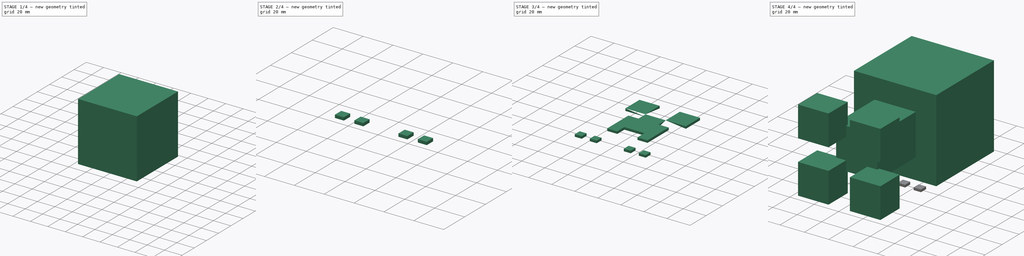
[diagram: build sequence overview — one tinted view per stage of 4, left to right]
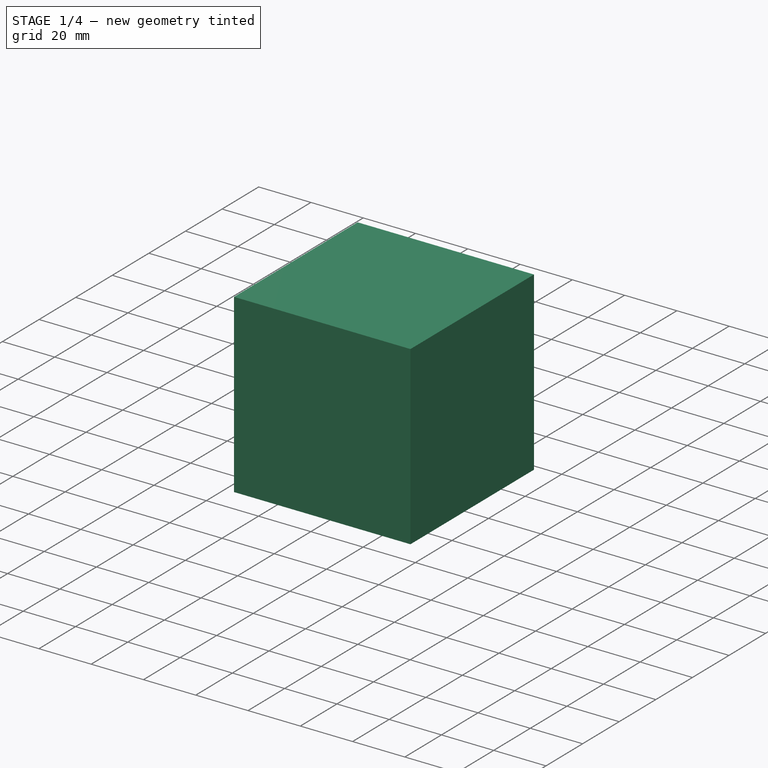
[diagram: stage 1 of 4 — iso view after this stage's code; geometry added in this stage tinted green]
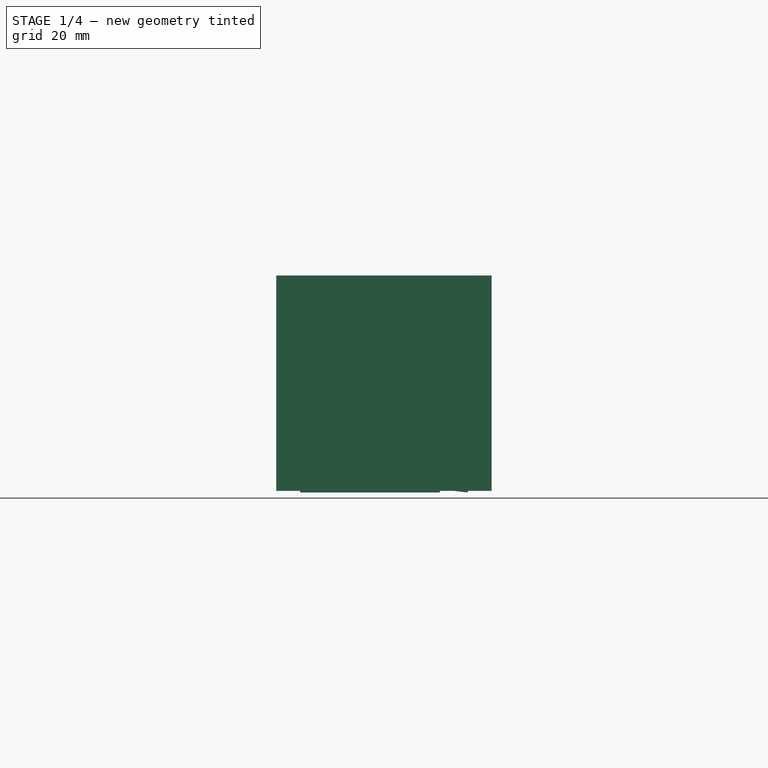
[diagram: stage 1 of 4 — front view after this stage's code; geometry added in this stage tinted green]
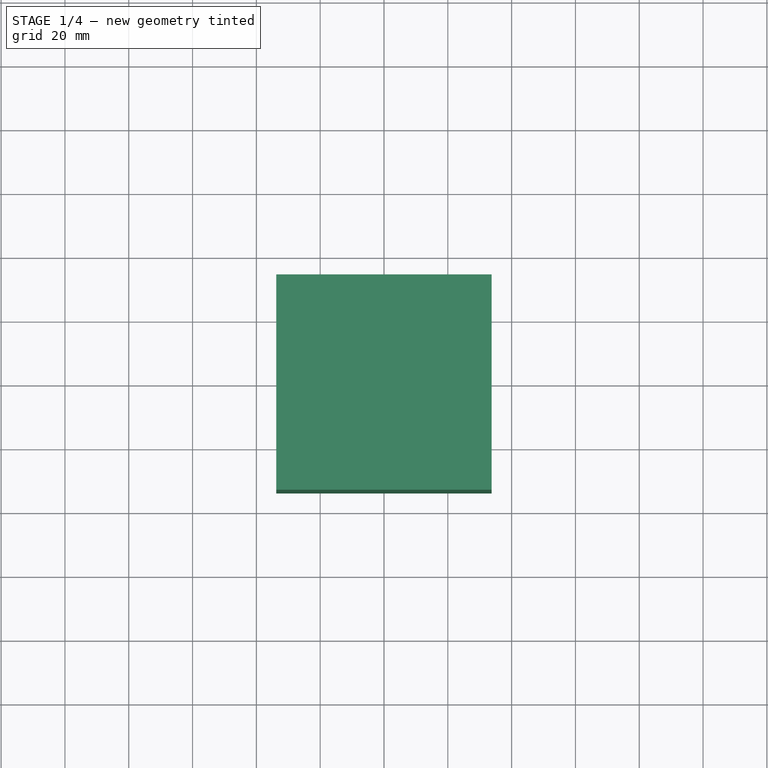
[diagram: stage 1 of 4 — top view after this stage's code; geometry added in this stage tinted green]
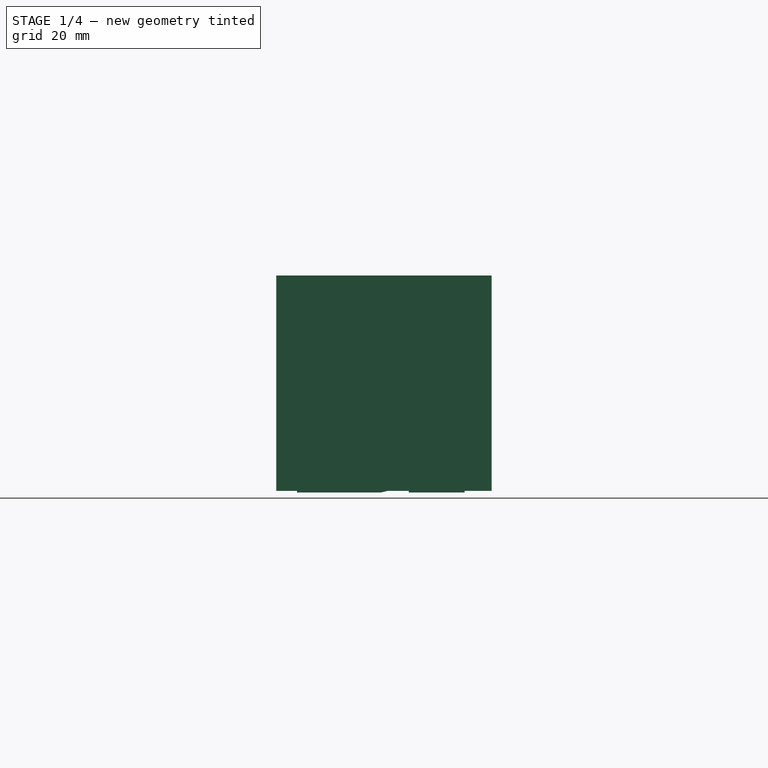
[diagram: stage 1 of 4 — right view after this stage's code; geometry added in this stage tinted green]
FCSTD DOCUMENT  (FreeCAD 0.20R29603 (Git))
Label: pencileholder-creeper
License: All rights reserved
LicenseURL: http://en.wikipedia.org/wiki/All_rights_reserved
objects: Sketcher::SketchObject×5, Part::Extrusion×5, Part::Cut×2, Part::MultiFuse×2, Part::FeaturePython×2, Part::Thickness×1
note: 17 computed .brp shape members not serialized (recipe doc carries the construction recipe); baked Part::Feature solids carry a one-line shape summary decoded from their .brp

FEATURE [Sketcher::SketchObject] Sketch
  FullyConstrained = true
  expr: .Constraints.boxL = <<Screeper>>.Constraints.creeperL * 3 + 15 mm
  sketch-geometry (5):
    g0: LineSegment StartX=-33.75 StartY=-33.75 StartZ=0 EndX=-33.75 EndY=33.75 EndZ=0
    g1: LineSegment StartX=-33.75 StartY=33.75 StartZ=0 EndX=33.75 EndY=33.75 EndZ=0
    g2: LineSegment StartX=33.75 StartY=33.75 StartZ=0 EndX=33.75 EndY=-33.75 EndZ=0
    g3: LineSegment StartX=33.75 StartY=-33.75 StartZ=0 EndX=-33.75 EndY=-33.75 EndZ=0
    g4: GeomPoint X=0 Y=-1e-16 Z=0
  constraints (12):
    c: Coincident(g0,g1)
    c: Coincident(g1,g2)
    c: Coincident(g2,g3)
    c: Coincident(g3,g0)
    c: Horizontal(g1)
    c: Horizontal(g3)
    c: Vertical(g0)
    c: Vertical(g2)
    c: Symmetric(g1,g0,g4)
    c: Coincident(g4,g-1)
    c: Equal(g1,g2)
    c: DistanceX(g1,g1) = 67.5  'boxL'
FEATURE [Part::Extrusion] Extrude001
  Base = -> Sketch
  Dir = (0,0,1)
  DirMode = 0
  FaceMakerClass = Part::FaceMakerBullseye
  LengthFwd = 67.5
  LengthRev = 0
  Solid = true
  Symmetric = false
  expr: LengthFwd = <<Sketch>>.Constraints.boxL
FEATURE [Sketcher::SketchObject] Sketch003  label="Screeper"
  FullyConstrained = true
  MapMode = 5
  expr: Constraints[49] = .Constraints.creeperL * 1.5
  sketch-geometry (20):
    g0: LineSegment StartX=-26.25 StartY=26.25 StartZ=0 EndX=-8.75 EndY=26.25 EndZ=0
    g1: LineSegment StartX=-8.75 StartY=26.25 StartZ=0 EndX=-8.75 EndY=8.75003 EndZ=0
    g2: LineSegment StartX=-8.75 StartY=8.75003 StartZ=0 EndX=8.75 EndY=8.75003 EndZ=0
    g3: LineSegment StartX=8.75 StartY=8.75003 StartZ=0 EndX=8.75 EndY=26.25 EndZ=0
    g4: LineSegment StartX=8.75 StartY=26.25 StartZ=0 EndX=26.25 EndY=26.25 EndZ=0
    g5: LineSegment StartX=26.25 StartY=26.25 StartZ=0 EndX=26.25 EndY=8.75003 EndZ=0
    g6: LineSegment StartX=26.25 StartY=8.75003 StartZ=0 EndX=8.75 EndY=8.75003 EndZ=0
    g7: LineSegment StartX=8.75 StartY=8.75003 StartZ=0 EndX=8.75 EndY=0 EndZ=0
    g8: LineSegment StartX=8.75 StartY=0 StartZ=0 EndX=17.5 EndY=0 EndZ=0
    g9: LineSegment StartX=17.5 StartY=0 StartZ=0 EndX=17.5 EndY=-26.25 EndZ=0
    g10: LineSegment StartX=17.5 StartY=-26.25 StartZ=0 EndX=8.75 EndY=-26.25 EndZ=0
    g11: LineSegment StartX=8.75 StartY=-26.25 StartZ=0 EndX=8.75 EndY=-17.5 EndZ=0
    g12: LineSegment StartX=8.75 StartY=-17.5 StartZ=0 EndX=-8.75 EndY=-17.5 EndZ=0
    g13: LineSegment StartX=-8.75 StartY=-17.5 StartZ=0 EndX=-8.75 EndY=-26.25 EndZ=0
    g14: LineSegment StartX=-8.75 StartY=-26.25 StartZ=0 EndX=-17.5 EndY=-26.25 EndZ=0
    g15: LineSegment StartX=-17.5 StartY=-26.25 StartZ=0 EndX=-17.5 EndY=0 EndZ=0
    g16: LineSegment StartX=-17.5 StartY=0 StartZ=0 EndX=-8.75 EndY=0 EndZ=0
    g17: LineSegment StartX=-8.75 StartY=0 StartZ=0 EndX=-8.75 EndY=8.75003 EndZ=0
    g18: LineSegment StartX=-8.75 StartY=8.75003 StartZ=0 EndX=-26.25 EndY=8.75003 EndZ=0
    g19: LineSegment StartX=-26.25 StartY=8.75003 StartZ=0 EndX=-26.25 EndY=26.25 EndZ=0
  constraints (54):
    c: Horizontal(g0)
    c: Coincident(g0,g1)
    c: Coincident(g1,g2)
    c: Coincident(g2,g3)
    c: Vertical(g3)
    c: Coincident(g3,g4)
    c: Horizontal(g4)
    c: Coincident(g4,g5)
    c: Vertical(g5)
    c: Coincident(g5,g6)
    c: Coincident(g6,g2)
    c: Horizontal(g6)
    c: Coincident(g6,g7)
    c: Vertical(g7)
    c: Coincident(g7,g8)
    c: Horizontal(g8)
    c: Coincident(g8,g9)
    c: Coincident(g9,g10)
    c: Coincident(g10,g11)
    c: Vertical(g11)
    c: Coincident(g11,g12)
    c: Horizontal(g12)
    c: Coincident(g12,g13)
    c: Vertical(g13)
    c: Coincident(g13,g14)
    c: Horizontal(g14)
    c: Coincident(g14,g15)
    c: PointOnObject(g15,g-1)
    c: Vertical(g15)
    c: Coincident(g15,g16)
    c: Coincident(g16,g17)
    c: Coincident(g17,g1)
    c: Coincident(g17,g18)
    c: Coincident(g18,g19)
    c: Coincident(g19,g0)
    c: Vertical(g19)
    c: Symmetric(g8,g15,g-1)
    c: Symmetric(g1,g2,g-2)
    c: Horizontal(g18)
    c: Vertical(g1)
    c: Equal(g4,g5)
    c: Equal(g5,g18)
    c: Equal(g18,g19)
    c: Equal(g19,g12)
    c: Vertical(g9)
    c: Equal(g9,g15)
    c: DistanceX(g4,g4) = 17.5  'creeperL'
    c: Symmetric(g3,g10,g7)
    c: Equal(g10,g14)
    c: DistanceY(g9,g9) = 26.25
    c: Symmetric(g7,g16,g-1)
    c: Equal(g7,g8)
    c: Equal(g16,g14)
    c: Equal(g13,g17)
FEATURE [Part::Extrusion] Extrude  label="face"
  Base = -> Sketch003
  Dir = (0,0,1)
  DirMode = 0
  FaceMakerClass = Part::FaceMakerBullseye
  LengthFwd = 2
  LengthRev = 0
  Placement = pos=(0,-1,-0.5) rot=(0,0,1;0rad)
  Solid = true
  Symmetric = false
FEATURE [Part::Thickness] Thickness
  Faces = -> Extrude001 [Face2]
  Intersection = false
  Join = 0
  Mode = 0
  SelfIntersection = false
  Value = -2.5
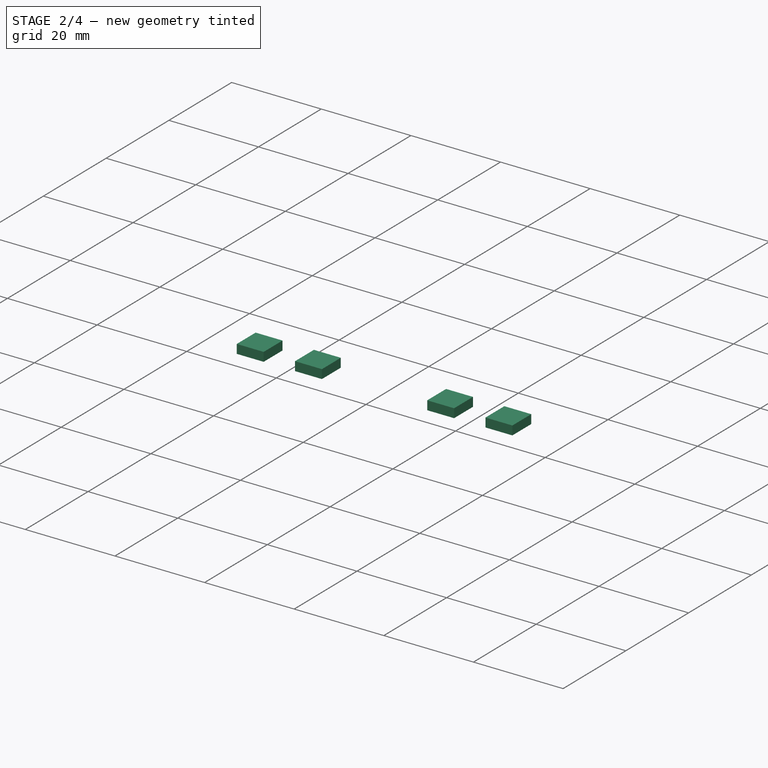
[diagram: stage 2 of 4 — iso view after this stage's code; geometry added in this stage tinted green]
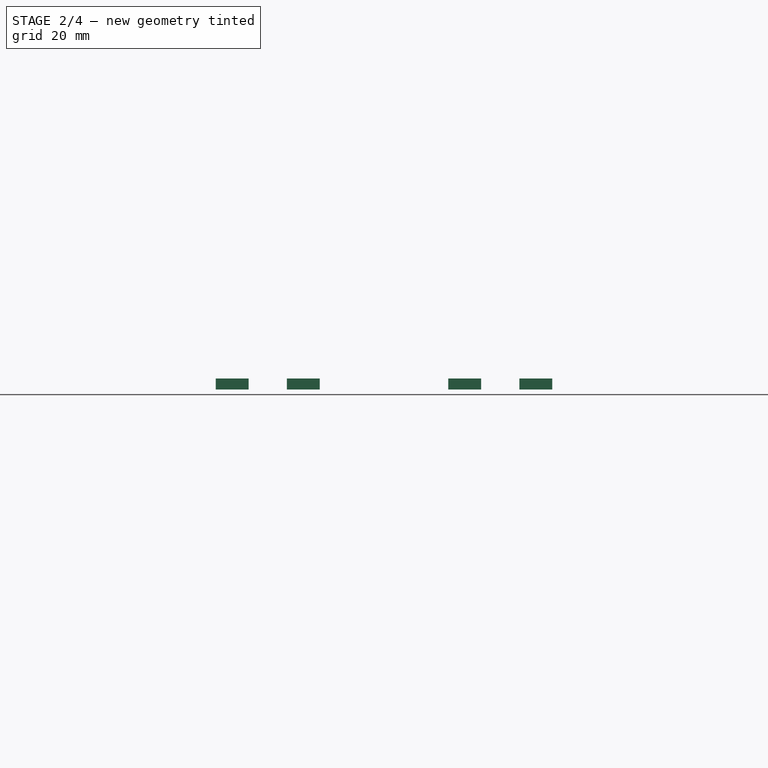
[diagram: stage 2 of 4 — front view after this stage's code; geometry added in this stage tinted green]
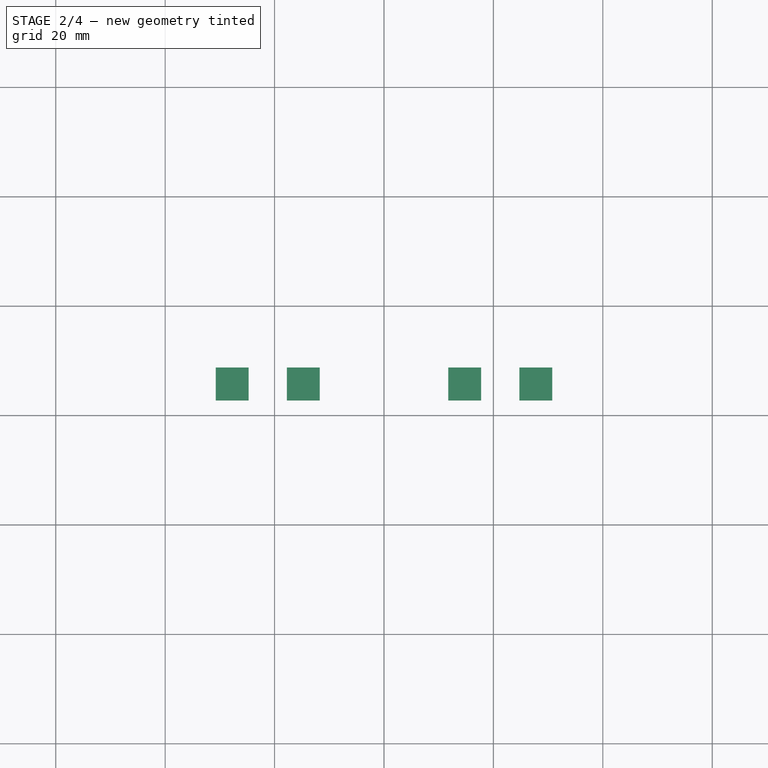
[diagram: stage 2 of 4 — top view after this stage's code; geometry added in this stage tinted green]
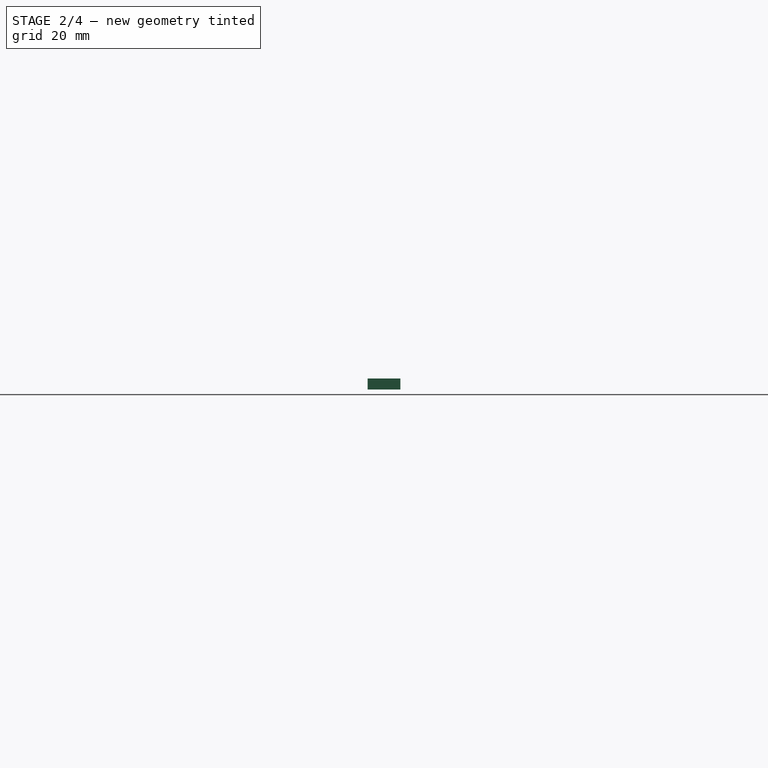
[diagram: stage 2 of 4 — right view after this stage's code; geometry added in this stage tinted green]
FEATURE [Part::Cut] Cut  label="head"
  Base = -> Thickness
  Tool = -> Extrude
FEATURE [Sketcher::SketchObject] Sketch005
  AttachmentOffset = pos=(0,0,64) rot=(0,0,1;0rad)
  ExternalGeometry = -> [Cut]
  FullyConstrained = true
  MapMode = 5
  Placement = pos=(0,-97.75,1.42e-14) rot=(1,0,0;1.5708rad)
  Support = -> [Cut]
  expr: Constraints[43] = Sketch.Constraints.boxL * 2 / 3 - 20 mm
  sketch-geometry (16):
    g0: LineSegment StartX=-33.75 StartY=67.5 StartZ=0 EndX=-8.75 EndY=67.5 EndZ=0
    g1: LineSegment StartX=-8.75 StartY=67.5 StartZ=0 EndX=-8.75 EndY=42.5 EndZ=0
    g2: LineSegment StartX=-8.75 StartY=42.5 StartZ=0 EndX=-33.75 EndY=42.5 EndZ=0
    g3: LineSegment StartX=-33.75 StartY=42.5 StartZ=0 EndX=-33.75 EndY=67.5 EndZ=0
    g4: LineSegment StartX=33.75 StartY=67.5 StartZ=0 EndX=8.75 EndY=67.5 EndZ=0
    g5: LineSegment StartX=8.75 StartY=67.5 StartZ=0 EndX=8.75 EndY=42.5 EndZ=0
    g6: LineSegment StartX=8.75 StartY=42.5 StartZ=0 EndX=33.75 EndY=42.5 EndZ=0
    g7: LineSegment StartX=33.75 StartY=42.5 StartZ=0 EndX=33.75 EndY=67.5 EndZ=0
    g8: LineSegment StartX=-33.75 StartY=0 StartZ=0 EndX=-8.75 EndY=0 EndZ=0
    g9: LineSegment StartX=-8.75 StartY=0 StartZ=0 EndX=-8.75 EndY=25 EndZ=0
    g10: LineSegment StartX=-8.75 StartY=25 StartZ=0 EndX=-33.75 EndY=25 EndZ=0
    g11: LineSegment StartX=-33.75 StartY=25 StartZ=0 EndX=-33.75 EndY=0 EndZ=0
    g12: LineSegment StartX=33.75 StartY=0 StartZ=0 EndX=8.75 EndY=0 EndZ=0
    g13: LineSegment StartX=8.75 StartY=0 StartZ=0 EndX=8.75 EndY=25 EndZ=0
    g14: LineSegment StartX=8.75 StartY=25 StartZ=0 EndX=33.75 EndY=25 EndZ=0
    g15: LineSegment StartX=33.75 StartY=25 StartZ=0 EndX=33.75 EndY=0 EndZ=0
  constraints (44):
    c: Coincident(g0,g1)
    c: Coincident(g1,g2)
    c: Coincident(g2,g3)
    c: Coincident(g3,g0)
    c: Horizontal(g0)
    c: Horizontal(g2)
    c: Vertical(g1)
    c: Vertical(g3)
    c: Coincident(g0,g-5)
    c: Coincident(g4,g5)
    c: Coincident(g5,g6)
    c: Coincident(g6,g7)
    c: Coincident(g7,g4)
    c: Horizontal(g4)
    c: Horizontal(g6)
    c: Vertical(g5)
    c: Vertical(g7)
    c: Coincident(g4,g-4)
    c: Coincident(g8,g9)
    c: Coincident(g9,g10)
    c: Coincident(g10,g11)
    c: Coincident(g11,g8)
    c: Horizontal(g8)
    c: Horizontal(g10)
    c: Vertical(g9)
    c: Vertical(g11)
    c: Coincident(g8,g-6)
    c: Coincident(g12,g13)
    c: Coincident(g13,g14)
    c: Coincident(g14,g15)
    c: Coincident(g15,g12)
    c: Horizontal(g12)
    c: Horizontal(g14)
    c: Vertical(g13)
    c: Vertical(g15)
    c: Coincident(g12,g-6)
    c: Equal(g4,g5)
    c: Equal(g5,g1)
    c: Equal(g1,g0)
    c: Equal(g0,g10)
    c: Equal(g10,g11)
    c: Equal(g11,g14)
    c: Equal(g14,g13)
    c: DistanceX(g4,g4) = 25
FEATURE [Part::Extrusion] Extrude003  label="feett"
  Base = -> Sketch005
  Dir = (0,-1,2e-16)
  DirMode = 2
  FaceMakerClass = Part::FaceMakerBullseye
  LengthFwd = 22.5
  LengthRev = 0
  Solid = true
  Symmetric = false
  expr: LengthFwd = Sketch.Constraints.boxL / 3
FEATURE [Sketcher::SketchObject] Sketch006
  ExternalGeometry = -> [Extrude003]
  FullyConstrained = true
  MapMode = 5
  Placement = pos=(0,0,-7.3e-15) rot=(1,0,0;3.14159rad)
  Support = -> [Extrude003]
  sketch-geometry (22):
    g0: LineSegment StartX=30.75 StartY=117.25 StartZ=0 EndX=24.75 EndY=117.25 EndZ=0
    g1: LineSegment StartX=24.75 StartY=117.25 StartZ=0 EndX=24.75 EndY=111.25 EndZ=0
    g2: LineSegment StartX=24.75 StartY=111.25 StartZ=0 EndX=30.75 EndY=111.25 EndZ=0
    g3: LineSegment StartX=30.75 StartY=111.25 StartZ=0 EndX=30.75 EndY=117.25 EndZ=0
    g4: LineSegment StartX=17.75 StartY=111.25 StartZ=0 EndX=11.75 EndY=111.25 EndZ=0
    g5: LineSegment StartX=11.75 StartY=111.25 StartZ=0 EndX=11.75 EndY=117.25 EndZ=0
    g6: LineSegment StartX=11.75 StartY=117.25 StartZ=0 EndX=17.75 EndY=117.25 EndZ=0
    g7: LineSegment StartX=17.75 StartY=117.25 StartZ=0 EndX=17.75 EndY=111.25 EndZ=0
    g8: LineSegment StartX=-11.75 StartY=111.25 StartZ=0 EndX=-17.75 EndY=111.25 EndZ=0
    g9: LineSegment StartX=-17.75 StartY=111.25 StartZ=0 EndX=-17.75 EndY=117.25 EndZ=0
    g10: LineSegment StartX=-17.75 StartY=117.25 StartZ=0 EndX=-11.75 EndY=117.25 EndZ=0
    g11: LineSegment StartX=-11.75 StartY=117.25 StartZ=0 EndX=-11.75 EndY=111.25 EndZ=0
    g12: LineSegment StartX=-24.75 StartY=117.25 StartZ=0 EndX=-30.75 EndY=117.25 EndZ=0
    g13: LineSegment StartX=-30.75 StartY=117.25 StartZ=0 EndX=-30.75 EndY=111.25 EndZ=0
    g14: LineSegment StartX=-30.75 StartY=111.25 StartZ=0 EndX=-24.75 EndY=111.25 EndZ=0
    g15: LineSegment StartX=-24.75 StartY=111.25 StartZ=0 EndX=-24.75 EndY=117.25 EndZ=0
    g16: GeomPoint X=27.75 Y=114.25 Z=0
    g17: GeomPoint X=14.75 Y=114.25 Z=0
    g18: GeomPoint X=-14.75 Y=114.25 Z=0
    g19: GeomPoint X=-27.75 Y=114.25 Z=0
    g20: LineSegment StartX=27.75 StartY=114.25 StartZ=0 EndX=14.75 EndY=114.25 EndZ=0
    g21: LineSegment StartX=-14.75 StartY=114.25 StartZ=0 EndX=-27.75 EndY=114.25 EndZ=0
  constraints (55):
    c: Coincident(g0,g1)
    c: Coincident(g1,g2)
    c: Coincident(g2,g3)
    c: Coincident(g3,g0)
    c: Horizontal(g0)
    c: Horizontal(g2)
    c: Vertical(g1)
    c: Vertical(g3)
    c: Coincident(g4,g5)
    c: Coincident(g5,g6)
    c: Coincident(g6,g7)
    c: Coincident(g7,g4)
    c: Horizontal(g4)
    c: Horizontal(g6)
    c: Vertical(g5)
    c: Vertical(g7)
    c: Coincident(g8,g9)
    c: Coincident(g9,g10)
    c: Coincident(g10,g11)
    c: Coincident(g11,g8)
    c: Horizontal(g8)
    c: Horizontal(g10)
    c: Vertical(g9)
    c: Vertical(g11)
    c: Coincident(g12,g13)
    c: Coincident(g13,g14)
    c: Coincident(g14,g15)
    c: Coincident(g15,g12)
    c: Horizontal(g12)
    c: Horizontal(g14)
    c: Vertical(g13)
    c: Vertical(g15)
    c: Equal(g14,g13)
    c: Equal(g13,g9)
    c: Equal(g9,g8)
    c: Equal(g8,g4)
    c: Equal(g4,g5)
    c: Equal(g5,g2)
    c: Equal(g2,g1)
    c: DistanceX(g14,g14) = 6
    c: Symmetric(g13,g12,g19)
    c: Symmetric(g8,g10,g18)
    c: Symmetric(g4,g6,g17)
    c: Symmetric(g1,g0,g16)
    c: Horizontal(g16,g17)
    c: Horizontal(g18,g19)
    c: Symmetric(g17,g18,g-2)
    c: Coincident(g20,g16)
    c: Coincident(g20,g17)
    c: Coincident(g21,g18)
    c: Coincident(g21,g19)
    c: Equal(g21,g20)
    c: DistanceX(g10,g-4) = 3
    c: DistanceX(g-10,g12) = 3
    c: DistanceY(g10,g-4) = 3
FEATURE [Part::Extrusion] Extrude004  label="nail"
  Base = -> Sketch006
  Dir = (0,0,-1)
  DirMode = 0
  FaceMakerClass = Part::FaceMakerBullseye
  LengthFwd = 2
  LengthRev = 0
  Reversed = true
  Solid = true
  Symmetric = false
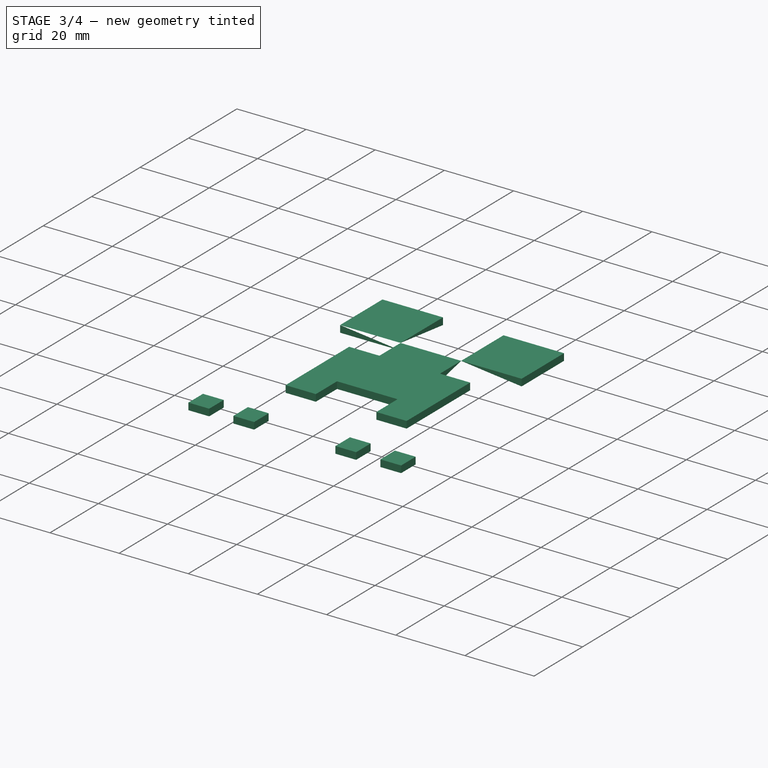
[diagram: stage 3 of 4 — iso view after this stage's code; geometry added in this stage tinted green]
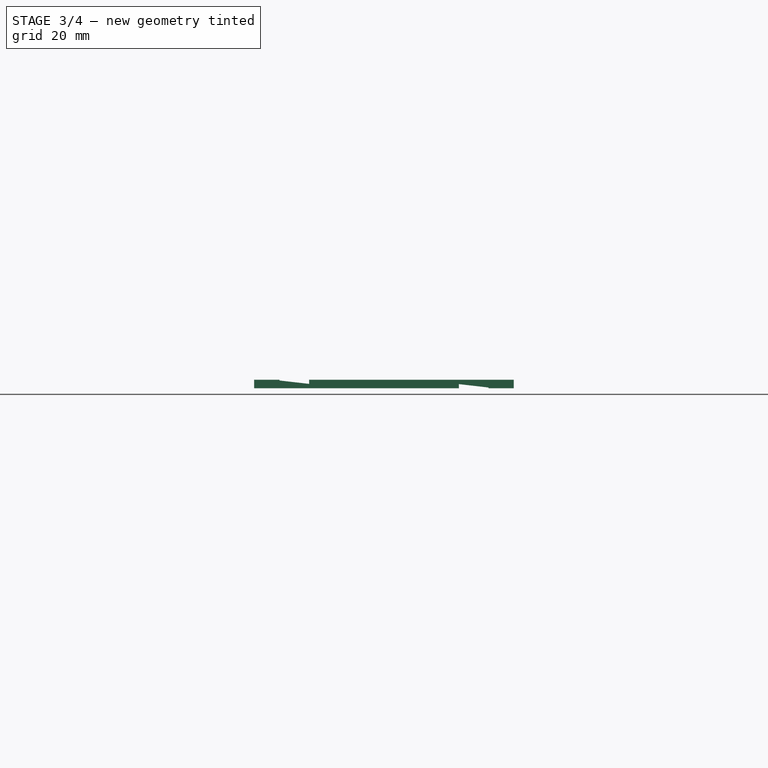
[diagram: stage 3 of 4 — front view after this stage's code; geometry added in this stage tinted green]
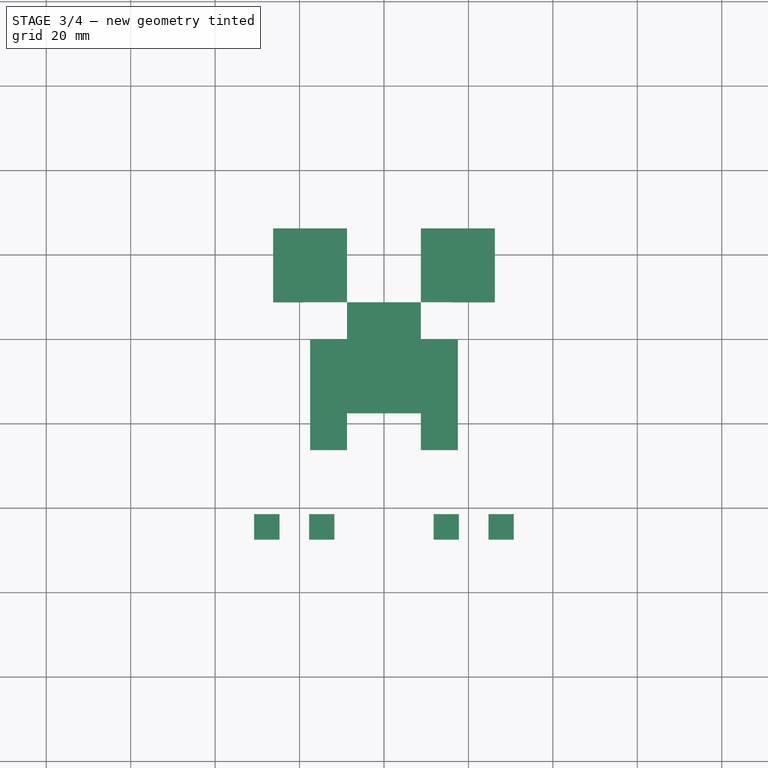
[diagram: stage 3 of 4 — top view after this stage's code; geometry added in this stage tinted green]
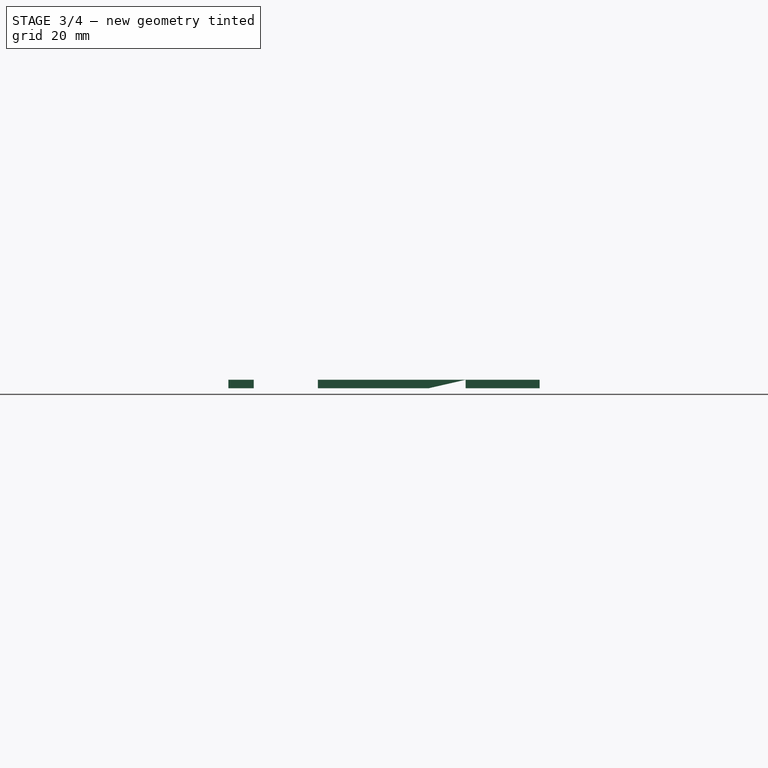
[diagram: stage 3 of 4 — right view after this stage's code; geometry added in this stage tinted green]
FEATURE [Part::FeaturePython] Clone  label="face001"  # Draft clone (typed FeaturePython)
  AttacherType = Attacher::AttachEngine3D
  Fuse = false
  Objects = -> [Extrude]
  Scale = (1,1,1)
FEATURE [Part::FeaturePython] Clone001  label="nail001"  # Draft clone (typed FeaturePython)
  AttacherType = Attacher::AttachEngine3D
  Fuse = false
  Objects = -> [Extrude004]
  Placement = pos=(0,69.8,0) rot=(0,0,1;0rad)
  Scale = (1,1,1)
FEATURE [Part::MultiFuse] Fusion001  label="face-nails"
  Shapes = -> [Clone001,Clone]
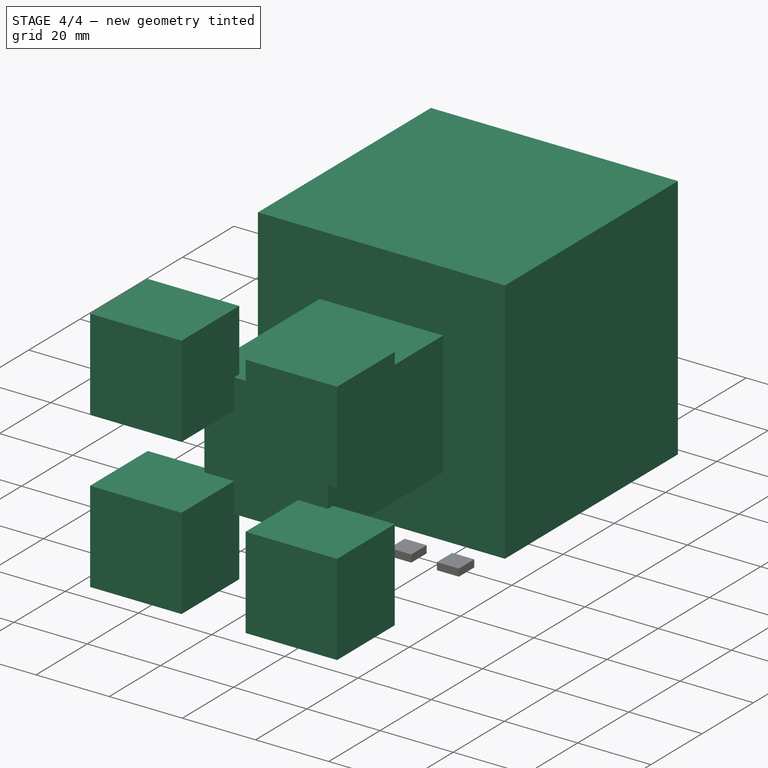
[diagram: stage 4 of 4 — iso view after this stage's code; geometry added in this stage tinted green]
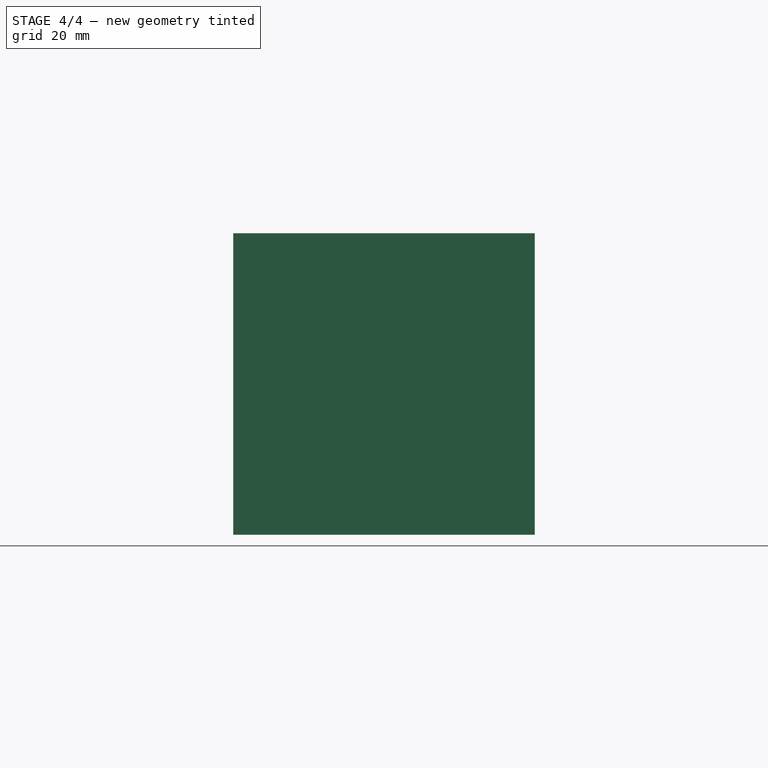
[diagram: stage 4 of 4 — front view after this stage's code; geometry added in this stage tinted green]
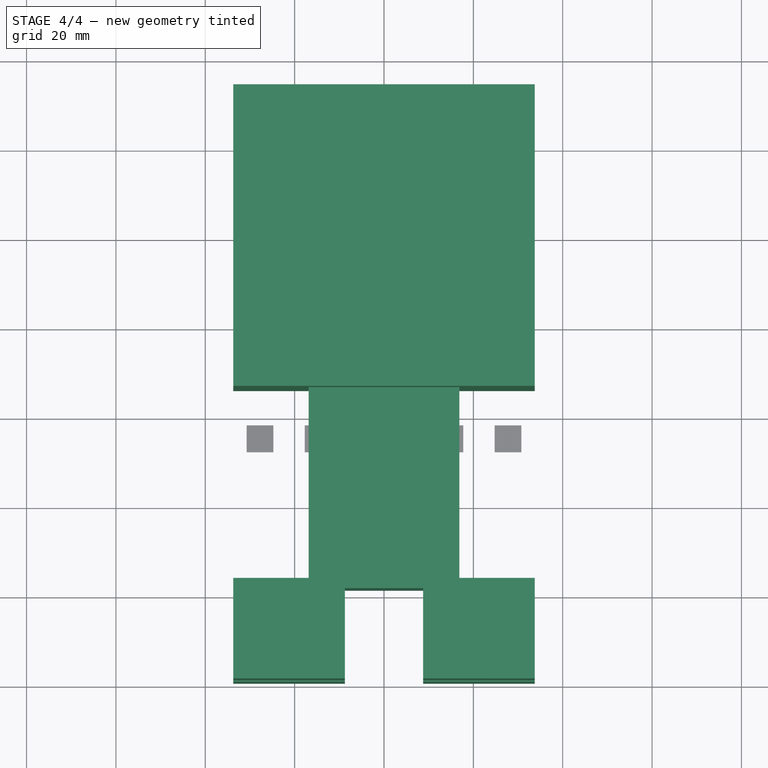
[diagram: stage 4 of 4 — top view after this stage's code; geometry added in this stage tinted green]
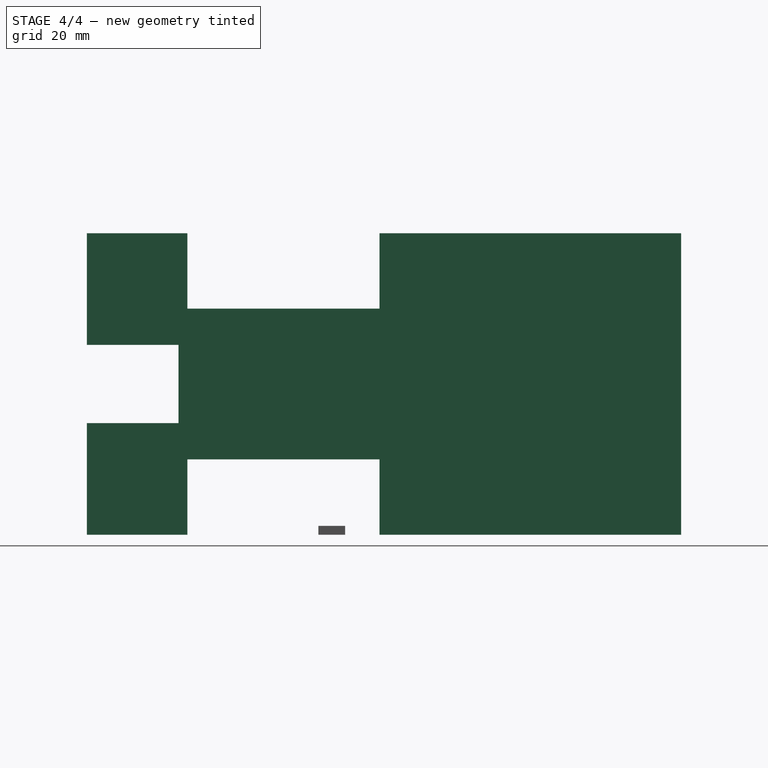
[diagram: stage 4 of 4 — right view after this stage's code; geometry added in this stage tinted green]
FEATURE [Sketcher::SketchObject] Sketch004
  ExternalGeometry = -> [Cut]
  FullyConstrained = true
  MapMode = 5
  Placement = pos=(0,-33.75,0) rot=(1,0,0;1.5708rad)
  Support = -> [Cut]
  expr: Constraints[12] = Sketch.Constraints.boxL * 0.5
  sketch-geometry (6):
    g0: GeomPoint X=-5e-16 Y=33.75 Z=0
    g1: LineSegment StartX=-16.875 StartY=16.875 StartZ=0 EndX=-16.875 EndY=50.625 EndZ=0
    g2: LineSegment StartX=-16.875 StartY=50.625 StartZ=0 EndX=16.875 EndY=50.625 EndZ=0
    g3: LineSegment StartX=16.875 StartY=50.625 StartZ=0 EndX=16.875 EndY=16.875 EndZ=0
    g4: LineSegment StartX=16.875 StartY=16.875 StartZ=0 EndX=-16.875 EndY=16.875 EndZ=0
    g5: GeomPoint X=-5e-16 Y=33.75 Z=0
  constraints (13):
    c: Symmetric(g-6,g-5,g0)
    c: Coincident(g1,g2)
    c: Coincident(g2,g3)
    c: Coincident(g3,g4)
    c: Coincident(g4,g1)
    c: Horizontal(g2)
    c: Horizontal(g4)
    c: Vertical(g1)
    c: Vertical(g3)
    c: Symmetric(g2,g1,g5)
    c: Coincident(g5,g0)
    c: Equal(g2,g3)
    c: DistanceX(g2,g2) = 33.75
FEATURE [Part::Extrusion] Extrude002  label="body"
  Base = -> Sketch004
  Dir = (0,-1,0)
  DirMode = 0
  FaceMakerClass = Part::FaceMakerBullseye
  LengthFwd = 45
  LengthRev = 2
  Solid = true
  Symmetric = false
  expr: LengthFwd = Sketch.Constraints.boxL * 2 / 3
FEATURE [Part::Cut] Cut001  label="feet"
  Base = -> Extrude003
  Placement = pos=(0,21,0) rot=(0,0,1;0rad)
  Tool = -> Extrude004
FEATURE [Part::MultiFuse] Fusion  label="pencileholder"
  Shapes = -> [Cut,Extrude002,Cut001]
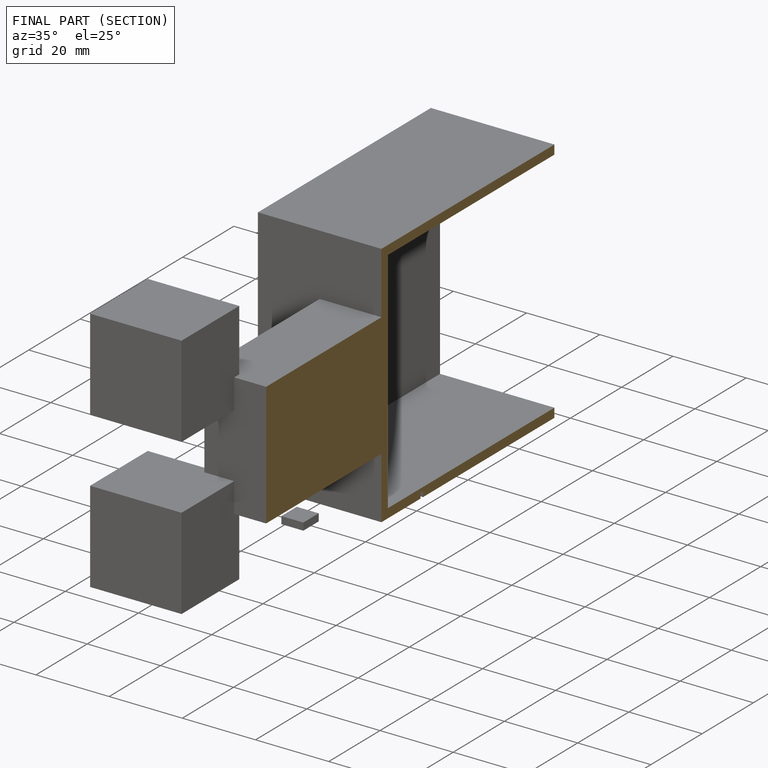
[diagram: finished part — half-section view (interior)]
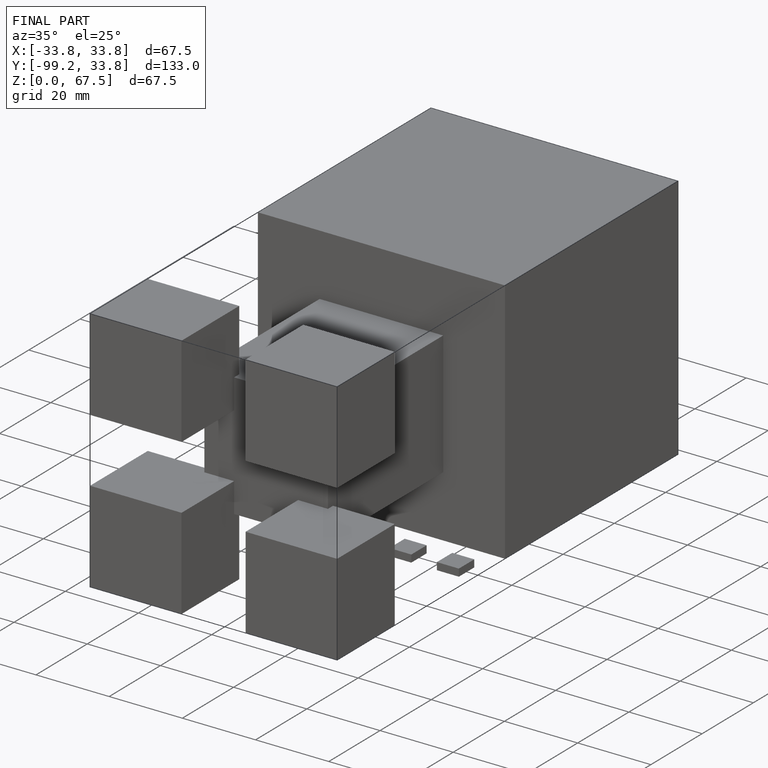
[diagram: finished part — iso view with bounding-box wireframe]
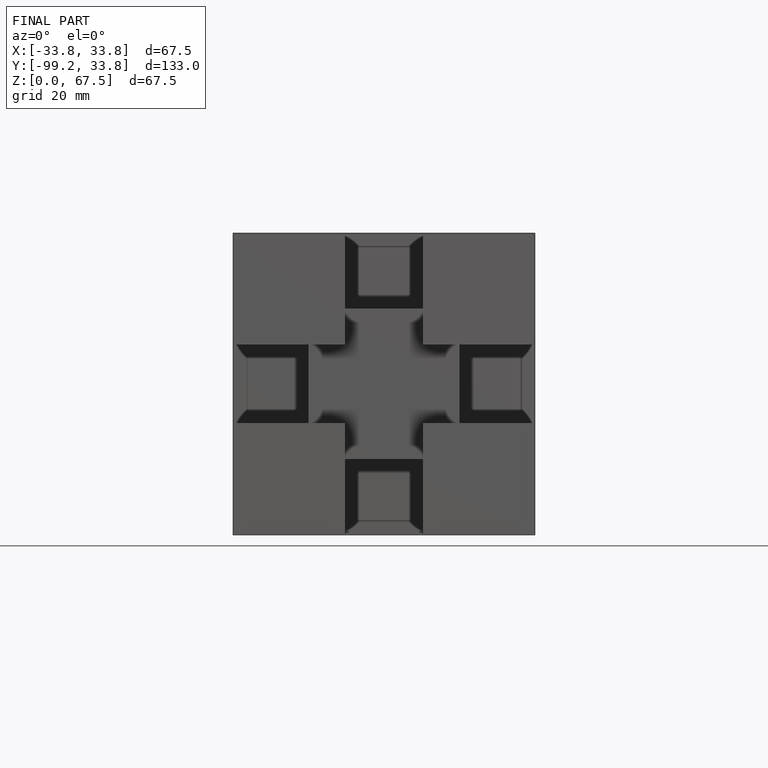
[diagram: finished part — front view with bounding-box wireframe]
